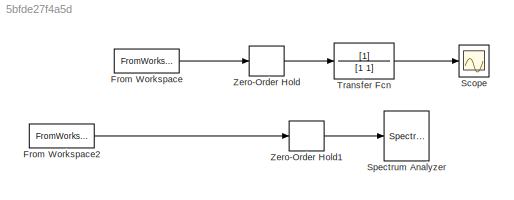
MODEL slx_5bfde27f4a5d
KIND model
CONFIG AbsTol = auto
CONFIG EnableMultiTasking = off
CONFIG FixedStep = 0.05
CONFIG MaxStep = auto
CONFIG MinStep = auto
CONFIG RelTol = 1e-3
CONFIG SampleTimeConstraint = Unconstrained
CONFIG SolverName = VariableStepAuto
CONFIG StartTime = 0.0
CONFIG StopTime = 60.5
BLOCK [FromWorkspace] From Workspace
  SampleTime = 0.5
  VariableName = ts_az
BLOCK [FromWorkspace] From Workspace2
  SampleTime = 0.5
  VariableName = ts_az
BLOCK [Scope] Scope
  ActiveDisplayYMaximum = 0.54899091594583993
  ActiveDisplayYMinimum = -0.23759418413535849
  Floating = off
  GraphicalSettings = {"Style":{"BackgroundColor":[0.12941176470588237,0.12941176470588237,0.12941176470588237],"AxesColor":[0.07058823529411765,0.07058823529411765,0.07058823529411765],"LabelsColor":[0.8509803921568627,0.8509803921568627,0.8509803921568627],"PreserveColors":false,"Visible":[true],"LineStyle":["-"],"LineWidth":[1.5],"BarWidth":[0.9],"LineColor":["auto"],"LineFaceAlpha":[1],"LineEdgeAlpha":[1],"Marker":...<+1912ch>
  MultipleDisplayCache = [{"MaxYLimMag":0.54899091594583993,"MaxYLimReal":0.54899091594583993,"MinYLimMag":0,"MinYLimReal":-0.23759418413535849,"PlotAsMagnitudePhase":false,"ShowGrid":true,"ShowLegend":false,"Title":"%<SignalLabel>","YLabel":""}]
  NumInputPorts = 1
  ScopeFrameLocation = window
  WasSavedAsWebScope = on
  WindowPosition = [403.000000,174.000000,560.000000,420.000000,]
BLOCK [SpectrumAnalyzer] Spectrum Analyzer
  GraphicalSettings = {"GraphicalSettings":{"Style":{"BackgroundColor":[0.12941176470588237,0.12941176470588237,0.12941176470588237],"AxesColor":[0.070588235294117646,0.070588235294117646,0.070588235294117646],"LabelsColor":[0.85098039215686272,0.85098039215686272,0.85098039215686272],"PreserveColors":false,"Visible":true,"LineStyle":["-"],"LineWidth":1.5,"BarWidth":0.9,"LineColor":[1,0.90980392156862744,0.392156862745...<+101ch>
  ScopeFrameLocation = window
  Span = 2
  SpectrumType = RMS
  SpectrumUnits = Vrms
  StartFrequency = -1
  StopFrequency = 1
  WasSavedAsWebScope = on
  WindowInvariantSamplesPerUpdate = on
  WindowPosition = [283.000000,134.000000,800.000000,500.000000,]
  YLimits = [-0.0166 0.1505]
BLOCK [TransferFcn] Transfer Fcn
  Denominator = [1 1]
BLOCK [ZeroOrderHold] Zero-Order Hold
  SampleTime = 0.5
BLOCK [ZeroOrderHold] Zero-Order Hold1
  SampleTime = 0.5
LINE From Workspace2:1 -> Zero-Order Hold1:1
LINE From Workspace:1 -> Zero-Order Hold:1
LINE Transfer Fcn:1 -> Scope:1
LINE Zero-Order Hold1:1 -> Spectrum Analyzer:1
LINE Zero-Order Hold:1 -> Transfer Fcn:1
